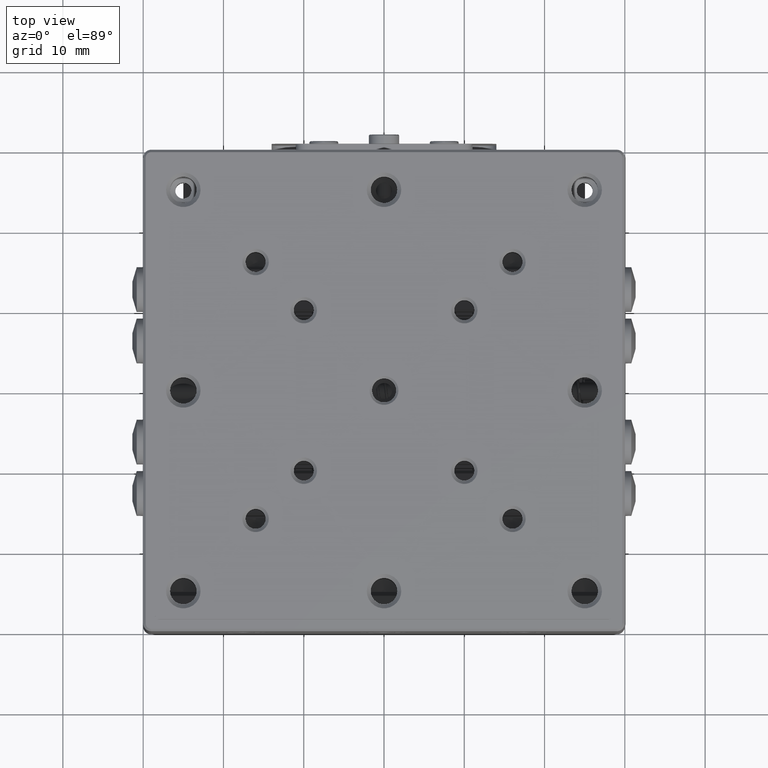
[diagram: clean part render]
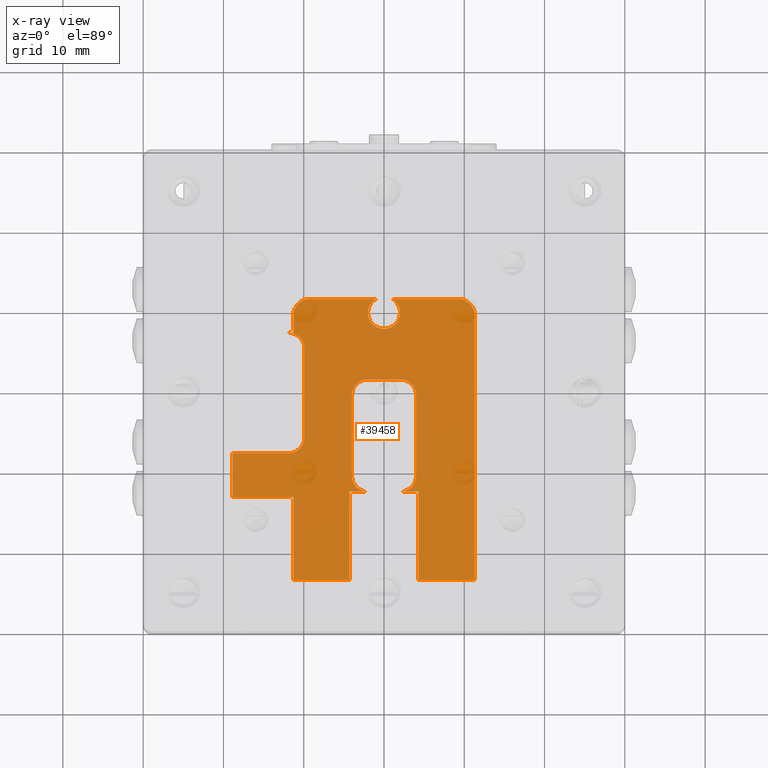
[diagram: x-ray — body ghosted, one internal face saturated and labeled with its STEP entity id]
A machine part, top view, then the same camera in x-ray: the body is ghosted and one INTERNAL B-rep face — a face not visible from any outside direction — is saturated and labeled: STEP entity #39458.
In plain terms, the highlighted planar face has unit normal (0, -0, 1).
Its self-contained STEP definition (entity closure, byte-faithful):
#500 = DIRECTION ( 'NONE',  ( 1.000000000000000000, 0.000000000000000000, -0.000000000000000000 ) ) ;
#527 = ORIENTED_EDGE ( 'NONE', *, *, #76208, .T. ) ;
#749 = VERTEX_POINT ( 'NONE', #58746 ) ;
#781 = CARTESIAN_POINT ( 'NONE',  ( 1.053565375285038019, 11.70000000000006146, -7.500000000000000888 ) ) ;
#857 = B_SPLINE_CURVE_WITH_KNOTS ( 'NONE', 3,
 ( #89902, #54098, #75636, #31029, #22253, #46249, #82547, #67811, #91336, #23673, #76132, #75160, #67328, #15390, #8991, #36955, #37899, #45263, #29598, #8011 ),
 .UNSPECIFIED., .F., .F.,
 ( 4, 1, 1, 1, 2, 2, 2, 1, 1, 1, 2, 2, 4 ),
 ( 0.000000000000000000, 0.1250000000000051903, 0.1875000000000077716, 0.2187500000000099087, 0.2343750000000103251, 0.2500000000000107137, 0.5000000000000005551, 0.6249999999999955591, 0.6874999999999934497, 0.7187499999999924505, 0.7343749999999926725, 0.7499999999999927836, 1.000000000000000000 ),
 .UNSPECIFIED. ) ;
#887 = CARTESIAN_POINT ( 'NONE',  ( -9.932177997966741501, 11.59797362498134099, -7.500000000000000000 ) ) ;
#1140 = ORIENTED_EDGE ( 'NONE', *, *, #53931, .T. ) ;
#1515 = VERTEX_POINT ( 'NONE', #5473 ) ;
#1814 = CARTESIAN_POINT ( 'NONE',  ( -11.10015324762576405, -7.333205600377914912, -7.500000000000002665 ) ) ;
#1837 = CARTESIAN_POINT ( 'NONE',  ( -11.13320560037766782, 10.49984675237453935, -7.500000000000001776 ) ) ;
#1904 = DIRECTION ( 'NONE',  ( 0.000000000000000000, 1.000000000000000000, -0.000000000000000000 ) ) ;
#2174 = ORIENTED_EDGE ( 'NONE', *, *, #11730, .T. ) ;
#2273 = VECTOR ( 'NONE', #11647, 1000.000000000000000 ) ;
#2305 = VERTEX_POINT ( 'NONE', #34175 ) ;
#2632 = CARTESIAN_POINT ( 'NONE',  ( -9.900000000000000355, 5.500000000000000000, -7.500000000000000888 ) ) ;
#2659 = CARTESIAN_POINT ( 'NONE',  ( -4.000000000000000000, -0.1729268595797736063, -7.500000000000001776 ) ) ;
#3517 = CARTESIAN_POINT ( 'NONE',  ( 10.90917479222266806, 10.91914732199016136, -7.500000000000001776 ) ) ;
#3625 = CARTESIAN_POINT ( 'NONE',  ( -2.750957539182414813, 1.553725627213396354, -7.500000000000000888 ) ) ;
#3676 = VECTOR ( 'NONE', #44287, 1000.000000000000000 ) ;
#3825 = CARTESIAN_POINT ( 'NONE',  ( 1.931251044790297078, 9.472790433418786904, -7.500000000000001776 ) ) ;
#4285 = DIRECTION ( 'NONE',  ( 1.000000000000000000, 0.000000000000000000, -0.000000000000000000 ) ) ;
#4316 = CARTESIAN_POINT ( 'NONE',  ( -1.511746682564725441, 8.683267052551551402, -7.500000000000000888 ) ) ;
#4700 = LINE ( 'NONE', #12077, #63885 ) ;
#4780 = CARTESIAN_POINT ( 'NONE',  ( 1.758125798563487274, 9.007357653029215427, -7.500000000000001776 ) ) ;
#5255 = CARTESIAN_POINT ( 'NONE',  ( 1.609174792222560324, 8.780852678010237611, -7.500000000000001776 ) ) ;
#5332 = DIRECTION ( 'NONE',  ( 1.000000000000000000, 0.000000000000000000, -0.000000000000000000 ) ) ;
#5473 = CARTESIAN_POINT ( 'NONE',  ( 2.000000000000000000, -12.30000000000000071, -7.500000000000000888 ) ) ;
#5781 = CARTESIAN_POINT ( 'NONE',  ( 3.760268104169530279, 0.6543209351523293638, -7.500000000000001776 ) ) ;
#5810 = CARTESIAN_POINT ( 'NONE',  ( -1.972834535069828865, 10.33132531235916041, -7.500000000000002665 ) ) ;
#5891 = DIRECTION ( 'NONE',  ( 1.000000000000000000, 0.000000000000000000, -0.000000000000000000 ) ) ;
#6257 = CARTESIAN_POINT ( 'NONE',  ( 4.000000000000000888, -0.04549697485550918685, -7.500000000000001776 ) ) ;
#6288 = CARTESIAN_POINT ( 'NONE',  ( -1.325224106915398936, 11.50729104251832524, -7.500000000000001776 ) ) ;
#6615 = VERTEX_POINT ( 'NONE', #94454 ) ;
#6662 = CARTESIAN_POINT ( 'NONE',  ( -3.846664217816563536, -11.06820000069774146, -7.500000000000002665 ) ) ;
#7191 = CARTESIAN_POINT ( 'NONE',  ( 4.000000000000000000, -0.2999999999999999889, -7.500000000000000888 ) ) ;
#7297 = CARTESIAN_POINT ( 'NONE',  ( -9.827209566581581512, 11.63125104479029481, -7.500000000000000000 ) ) ;
#7746 = CARTESIAN_POINT ( 'NONE',  ( -1.500137606733648710, 11.32343203370171025, -7.500000000000000000 ) ) ;
#7749 = CARTESIAN_POINT ( 'NONE',  ( -10.58326705255145050, -7.011746682564653277, -7.500000000000001776 ) ) ;
#7761 = CARTESIAN_POINT ( 'NONE',  ( 2.799846752374157255, -12.13320560037795204, -7.500000000000001776 ) ) ;
#7766 = CARTESIAN_POINT ( 'NONE',  ( -9.976856858129906414, 11.58206628694080109, -7.500000000000003553 ) ) ;
#7834 = VERTEX_POINT ( 'NONE', #19894 ) ;
#7877 = LINE ( 'NONE', #68146, #71623 ) ;
#8011 = CARTESIAN_POINT ( 'NONE',  ( -9.900000000000000355, 5.500000000000000000, -7.500000000000000888 ) ) ;
#8139 = CARTESIAN_POINT ( 'NONE',  ( 1.124649197056845740, 11.65594620390486469, -7.500000000000003553 ) ) ;
#8193 = B_SPLINE_CURVE_WITH_KNOTS ( 'NONE', 3,
 ( #51397, #44031, #22478, #81791, #75378, #82299, #29815, #74434, #73451, #30784, #81312, #80834, #14154, #73938, #7761, #43564, #37648, #60696, #14651, #21525 ),
 .UNSPECIFIED., .F., .F.,
 ( 4, 1, 1, 1, 2, 2, 2, 1, 1, 1, 2, 2, 4 ),
 ( 0.000000000000000000, 0.1250000000000008327, 0.1875000000000021927, 0.2187500000000028866, 0.2343750000000024702, 0.2500000000000020539, 0.5000000000000013323, 0.6250000000000008882, 0.6875000000000012212, 0.7187500000000013323, 0.7343750000000015543, 0.7500000000000017764, 1.000000000000000000 ),
 .UNSPECIFIED. ) ;
#8502 = LINE ( 'NONE', #16340, #3676 ) ;
#8517 = VERTEX_POINT ( 'NONE', #42539 ) ;
#8650 = CARTESIAN_POINT ( 'NONE',  ( 0.000000000000000000, -23.30000000000000071, -7.500000000000000888 ) ) ;
#8724 = CARTESIAN_POINT ( 'NONE',  ( -10.74113053165102905, -7.140566902677289995, -7.500000000000000000 ) ) ;
#8991 = CARTESIAN_POINT ( 'NONE',  ( -10.06679439962202061, 6.299846752374072878, -7.500000000000000000 ) ) ;
#9322 = DIRECTION ( 'NONE',  ( -0.000000000000000000, -1.000000000000000000, -0.000000000000000000 ) ) ;
#9428 = ORIENTED_EDGE ( 'NONE', *, *, #55498, .T. ) ;
#9433 = CARTESIAN_POINT ( 'NONE',  ( 9.554503025145196560, 11.70000000000000284, -7.500000000000001776 ) ) ;
#9480 = CARTESIAN_POINT ( 'NONE',  ( 11.30000000000000071, -23.30000000000000071, -7.500000000000000888 ) ) ;
#9529 = CARTESIAN_POINT ( 'NONE',  ( -2.768200000697572438, 1.546664217816668074, -7.500000000000002665 ) ) ;
#9915 = LINE ( 'NONE', #23172, #26085 ) ;
#9931 = CARTESIAN_POINT ( 'NONE',  ( 10.14695304999169601, 11.51247144108932829, -7.500000000000000888 ) ) ;
#10028 = CARTESIAN_POINT ( 'NONE',  ( -2.799846752374131054, 1.533205600378010791, -7.500000000000001776 ) ) ;
#10405 = B_SPLINE_CURVE_WITH_KNOTS ( 'NONE', 3,
 ( #29223, #59123, #28725, #36069, #43914, #82168, #50788, #29692, #72842, #15479, #52734, #13546, #65977, #89026, #95875, #6662, #14028, #44404, #59597, #74305 ),
 .UNSPECIFIED., .F., .F.,
 ( 4, 1, 1, 1, 2, 2, 2, 1, 1, 1, 2, 2, 4 ),
 ( 0.000000000000000000, 0.1249999999999977518, 0.1874999999999966138, 0.2187499999999958089, 0.2343749999999949207, 0.2499999999999940326, 0.4999999999999872324, 0.6249999999999839018, 0.6874999999999822364, 0.7187499999999813483, 0.7343749999999814593, 0.7499999999999816813, 1.000000000000000000 ),
 .UNSPECIFIED. ) ;
#10696 = ORIENTED_EDGE ( 'NONE', *, *, #73917, .T. ) ;
#10708 = CARTESIAN_POINT ( 'NONE',  ( 2.000000000000000000, 9.872926859579521874, -7.500000000000001776 ) ) ;
#10902 = CARTESIAN_POINT ( 'NONE',  ( 10.61673294744830365, 11.21174668256456464, -7.500000000000000000 ) ) ;
#10998 = CARTESIAN_POINT ( 'NONE',  ( -3.865917277347418413, 0.4201611111333397042, -7.500000000000000000 ) ) ;
#11287 = ORIENTED_EDGE ( 'NONE', *, *, #26418, .F. ) ;
#11647 = DIRECTION ( 'NONE',  ( -1.000000000000000000, -0.000000000000000000, 0.000000000000000000 ) ) ;
#11672 = CARTESIAN_POINT ( 'NONE',  ( -0.1269880111597319339, 7.999966323519930533, -7.500000000000002665 ) ) ;
#11730 = EDGE_CURVE ( 'NONE', #23526, #2305, #71532, .T. ) ;
#11827 = CARTESIAN_POINT ( 'NONE',  ( 2.000000000000000000, 10.00000000000000000, -7.500000000000000888 ) ) ;
#12000 = VERTEX_POINT ( 'NONE', #13668 ) ;
#12077 = CARTESIAN_POINT ( 'NONE',  ( 0.000000000000000000, -12.30000000000000071, -7.500000000000000888 ) ) ;
#12143 = CARTESIAN_POINT ( 'NONE',  ( -9.300000000000000711, 11.70000000000000107, -7.500000000000000888 ) ) ;
#12441 = VERTEX_POINT ( 'NONE', #88065 ) ;
#12672 = B_SPLINE_CURVE_WITH_KNOTS ( 'NONE', 3,
 ( #89138, #73436, #21022, #5810, #20524, #89613, #44019, #14636, #52365, #59229, #44516, #7746, #59703, #6288, #74419, #95506 ),
 .UNSPECIFIED., .F., .F.,
 ( 4, 1, 2, 2, 2, 1, 2, 2, 4 ),
 ( 0.000000000000000000, 0.1249999999999992784, 0.1875000000000001943, 0.2500000000000011102, 0.5000000000000025535, 0.6250000000000032196, 0.6875000000000024425, 0.7500000000000016653, 1.000000000000000000 ),
 .UNSPECIFIED. ) ;
#13546 = CARTESIAN_POINT ( 'NONE',  ( -3.640566902676908079, -11.45886946834975184, -7.500000000000001776 ) ) ;
#13627 = CARTESIAN_POINT ( 'NONE',  ( 3.853725627213396177, 0.4509575391823707480, -7.500000000000001776 ) ) ;
#13668 = CARTESIAN_POINT ( 'NONE',  ( 4.000000000000000000, -10.30000000000000071, -7.500000000000000888 ) ) ;
#14028 = CARTESIAN_POINT ( 'NONE',  ( -3.853725627213397065, -11.05095753918236667, -7.500000000000000888 ) ) ;
#14031 = ORIENTED_EDGE ( 'NONE', *, *, #72334, .T. ) ;
#14154 = CARTESIAN_POINT ( 'NONE',  ( 2.954320935151891536, -12.06026810416975614, -7.500000000000000888 ) ) ;
#14636 = CARTESIAN_POINT ( 'NONE',  ( -1.831426611794971571, 10.82190931247315113, -7.500000000000001776 ) ) ;
#14651 = CARTESIAN_POINT ( 'NONE',  ( 2.254503025144336092, -12.29999999999999538, -7.499999999999999112 ) ) ;
#15128 = CARTESIAN_POINT ( 'NONE',  ( -10.29082520777782150, -6.719147321989983546, -7.500000000000000000 ) ) ;
#15390 = CARTESIAN_POINT ( 'NONE',  ( -10.08752855891048839, 6.346953049991602036, -7.500000000000001776 ) ) ;
#15479 = CARTESIAN_POINT ( 'NONE',  ( -3.219147321990418309, -11.90917479222130737, -7.500000000000001776 ) ) ;
#15598 = CARTESIAN_POINT ( 'NONE',  ( -11.40010050181441237, -7.453192200708286919, -7.500000000000000888 ) ) ;
#15617 = CARTESIAN_POINT ( 'NONE',  ( -10.81174668256412019, 11.01673294744919573, -7.500000000000003553 ) ) ;
#15653 = VERTEX_POINT ( 'NONE', #12143 ) ;
#15922 = EDGE_CURVE ( 'NONE', #88504, #12000, #68422, .T. ) ;
#16340 = CARTESIAN_POINT ( 'NONE',  ( -11.30000000000000071, 0.000000000000000000, -7.500000000000000888 ) ) ;
#16363 = EDGE_CURVE ( 'NONE', #6615, #73544, #64004, .T. ) ;
#16564 = CARTESIAN_POINT ( 'NONE',  ( -10.03408272265259171, -6.220161111133355902, -7.500000000000001776 ) ) ;
#16615 = VERTEX_POINT ( 'NONE', #83041 ) ;
#16815 = VERTEX_POINT ( 'NONE', #2632 ) ;
#17144 = VERTEX_POINT ( 'NONE', #31915 ) ;
#17376 = CARTESIAN_POINT ( 'NONE',  ( -3.931251044790297744, 0.2272095665808810949, -7.500000000000001776 ) ) ;
#17624 = EDGE_CURVE ( 'NONE', #7834, #16615, #74975, .T. ) ;
#18005 = EDGE_CURVE ( 'NONE', #94831, #29196, #67586, .T. ) ;
#18267 = CARTESIAN_POINT ( 'NONE',  ( 11.30000000000000249, 9.827073140420763409, -7.500000000000002665 ) ) ;
#18272 = VECTOR ( 'NONE', #22576, 1000.000000000000000 ) ;
#18553 = CARTESIAN_POINT ( 'NONE',  ( 1.882066286940799804, 9.323143141870223971, -7.499999999999998224 ) ) ;
#18750 = CARTESIAN_POINT ( 'NONE',  ( 10.45886946834854569, 11.34056690267713918, -7.500000000000000888 ) ) ;
#18863 = EDGE_CURVE ( 'NONE', #749, #7834, #96456, .T. ) ;
#18999 = CARTESIAN_POINT ( 'NONE',  ( 0.000000000000000000, 7.500000000000000000, -7.500000000000000888 ) ) ;
#19894 = CARTESIAN_POINT ( 'NONE',  ( -4.299999999999999822, -23.30000000000000071, -7.500000000000000888 ) ) ;
#19914 = EDGE_CURVE ( 'NONE', #38891, #15653, #53927, .T. ) ;
#19988 = CARTESIAN_POINT ( 'NONE',  ( -1.219147321989834332, 8.390825207777620420, -7.500000000000001776 ) ) ;
#20252 = EDGE_CURVE ( 'NONE', #17144, #38891, #12672, .T. ) ;
#20492 = CARTESIAN_POINT ( 'NONE',  ( 2.632177997966496985, 1.597973624981343876, -7.500000000000000000 ) ) ;
#20524 = CARTESIAN_POINT ( 'NONE',  ( -1.957311412252587646, 10.41313231505990267, -7.500000000000000000 ) ) ;
#20980 = CARTESIAN_POINT ( 'NONE',  ( 3.812471441089329005, 0.5469530499919977862, -7.500000000000001776 ) ) ;
#21022 = CARTESIAN_POINT ( 'NONE',  ( -1.992238438591380056, 10.20815955257958052, -7.500000000000001776 ) ) ;
#21104 = CARTESIAN_POINT ( 'NONE',  ( 0.000000000000000000, -13.00000000000000178, -7.500000000000000888 ) ) ;
#21185 = ORIENTED_EDGE ( 'NONE', *, *, #34662, .T. ) ;
#21258 = B_SPLINE_CURVE_WITH_KNOTS ( 'NONE', 3,
 ( #24403, #74916, #74440, #7297, #887, #7766, #44536, #96991, #82305, #23901, #15617, #37185, #68992, #29820, #1837, #83732, #59724, #38137, #83236, #89639 ),
 .UNSPECIFIED., .F., .F.,
 ( 4, 1, 1, 1, 2, 2, 2, 1, 1, 1, 2, 2, 4 ),
 ( 0.000000000000000000, 0.1250000000000063283, 0.1875000000000101863, 0.2187500000000110467, 0.2343750000000103806, 0.2500000000000097145, 0.5000000000000041078, 0.6250000000000007772, 0.6874999999999994449, 0.7187499999999988898, 0.7343749999999978906, 0.7499999999999968914, 1.000000000000000000 ),
 .UNSPECIFIED. ) ;
#21476 = CARTESIAN_POINT ( 'NONE',  ( 2.314401673126242898, 1.682447075265607328, -7.500000000000000000 ) ) ;
#21525 = CARTESIAN_POINT ( 'NONE',  ( 2.000000000000000000, -12.30000000000000071, -7.500000000000000888 ) ) ;
#21923 = CARTESIAN_POINT ( 'NONE',  ( -1.953192200708286697, 9.500100501814566556, -7.500000000000002665 ) ) ;
#22253 = CARTESIAN_POINT ( 'NONE',  ( -11.26782200203331108, 7.397973624981347918, -7.500000000000005329 ) ) ;
#22467 = CARTESIAN_POINT ( 'NONE',  ( -10.01793371305919500, -6.176856858129603722, -7.500000000000000000 ) ) ;
#22478 = CARTESIAN_POINT ( 'NONE',  ( 3.982447075265608927, -10.61440167312521154, -7.500000000000000888 ) ) ;
#22576 = DIRECTION ( 'NONE',  ( -0.000000000000000000, -1.000000000000000000, -0.000000000000000000 ) ) ;
#22599 = LINE ( 'NONE', #67659, #51539 ) ;
#22964 = CARTESIAN_POINT ( 'NONE',  ( -10.00202637501865865, -6.132177997966250516, -7.500000000000002665 ) ) ;
#23048 = VERTEX_POINT ( 'NONE', #34294 ) ;
#23172 = CARTESIAN_POINT ( 'NONE',  ( -11.30000000000000071, 0.000000000000000000, -7.500000000000000888 ) ) ;
#23526 = VERTEX_POINT ( 'NONE', #28019 ) ;
#23673 = CARTESIAN_POINT ( 'NONE',  ( -10.68085267801032323, 7.109174792222928474, -7.500000000000001776 ) ) ;
#23809 = DIRECTION ( 'NONE',  ( 1.000000000000000000, 0.000000000000000000, 0.000000000000000000 ) ) ;
#23901 = CARTESIAN_POINT ( 'NONE',  ( -10.51914732199104030, 11.30917479222090094, -7.500000000000001776 ) ) ;
#24133 = CARTESIAN_POINT ( 'NONE',  ( 10.09984675237412688, 11.53320560037787246, -7.500000000000000000 ) ) ;
#24227 = CARTESIAN_POINT ( 'NONE',  ( -3.882066286940801803, 0.3768568581296565245, -7.500000000000000888 ) ) ;
#24397 = VERTEX_POINT ( 'NONE', #87625 ) ;
#24403 = CARTESIAN_POINT ( 'NONE',  ( -9.300000000000000711, 11.70000000000000107, -7.500000000000000888 ) ) ;
#25096 = CARTESIAN_POINT ( 'NONE',  ( 10.25432093515181897, 11.46026810416953623, -7.500000000000001776 ) ) ;
#25192 = CARTESIAN_POINT ( 'NONE',  ( -3.758125798563922260, 0.6926423469702396307, -7.499999999999999112 ) ) ;
#25590 = CARTESIAN_POINT ( 'NONE',  ( 9.300000000000000711, 11.70000000000000107, -7.500000000000000888 ) ) ;
#25881 = EDGE_CURVE ( 'NONE', #16615, #55766, #4700, .T. ) ;
#26085 = VECTOR ( 'NONE', #46678, 1000.000000000000000 ) ;
#26339 = FACE_OUTER_BOUND ( 'NONE', #26706, .T. ) ;
#26365 = CARTESIAN_POINT ( 'NONE',  ( -0.7065537897889984098, 8.128896134995676093, -7.499999999999997335 ) ) ;
#26418 = EDGE_CURVE ( 'NONE', #8517, #73544, #53410, .T. ) ;
#26459 = ORIENTED_EDGE ( 'NONE', *, *, #75853, .T. ) ;
#26706 = EDGE_LOOP ( 'NONE', ( #11287, #51062, #9428, #96420, #39189, #42910, #85609, #41780, #83891, #2174, #21185, #91758, #64110, #527, #10696, #87387, #65144, #26459, #35011, #94478, #88752, #30409, #92008, #30811, #14031, #71807, #33290, #77175, #1140, #65097 ) ) ;
#27781 = VERTEX_POINT ( 'NONE', #29448 ) ;
#28019 = CARTESIAN_POINT ( 'NONE',  ( -2.000000000000000000, 1.700000000000000178, -7.500000000000000888 ) ) ;
#28725 = CARTESIAN_POINT ( 'NONE',  ( -2.314401673125301873, -12.28244707526560653, -7.500000000000000000 ) ) ;
#28762 = CARTESIAN_POINT ( 'NONE',  ( 1.320881594162561123, 11.50237291628129377, -7.500000000000003553 ) ) ;
#29196 = VERTEX_POINT ( 'NONE', #38138 ) ;
#29223 = CARTESIAN_POINT ( 'NONE',  ( -2.000000000000000000, -12.30000000000000071, -7.500000000000000888 ) ) ;
#29326 = EDGE_CURVE ( 'NONE', #27781, #24397, #92529, .T. ) ;
#29448 = CARTESIAN_POINT ( 'NONE',  ( -11.29999999999999893, 7.500000000000000000, -7.500000000000000888 ) ) ;
#29598 = CARTESIAN_POINT ( 'NONE',  ( -9.899999999999998579, 5.754503025144331652, -7.500000000000000000 ) ) ;
#29692 = CARTESIAN_POINT ( 'NONE',  ( -2.720161111133421183, -12.16591727734737560, -7.500000000000002665 ) ) ;
#29815 = CARTESIAN_POINT ( 'NONE',  ( 3.871095708981806993, -11.00657440703168888, -7.500000000000004441 ) ) ;
#29820 = CARTESIAN_POINT ( 'NONE',  ( -11.11247144108899043, 10.54695304999238026, -7.500000000000000000 ) ) ;
#30345 = VECTOR ( 'NONE', #95329, 1000.000000000000000 ) ;
#30409 = ORIENTED_EDGE ( 'NONE', *, *, #20252, .T. ) ;
#30695 = CARTESIAN_POINT ( 'NONE',  ( 1.411218441835590198, 11.41784472537636574, -7.500000000000000888 ) ) ;
#30784 = CARTESIAN_POINT ( 'NONE',  ( 3.609174792222557215, -11.51914732198983238, -7.500000000000001776 ) ) ;
#30811 = ORIENTED_EDGE ( 'NONE', *, *, #39370, .T. ) ;
#31029 = CARTESIAN_POINT ( 'NONE',  ( -11.37279043341848528, 7.431251044790295524, -7.500000000000000888 ) ) ;
#31396 = DIRECTION ( 'NONE',  ( 0.000000000000000000, 1.000000000000000000, 0.000000000000000000 ) ) ;
#31710 = CARTESIAN_POINT ( 'NONE',  ( -11.90000000000000036, -7.500000000000000000, -7.500000000000000888 ) ) ;
#31915 = CARTESIAN_POINT ( 'NONE',  ( -2.000000000000000000, 10.00000000000000000, -7.500000000000000888 ) ) ;
#32235 = CARTESIAN_POINT ( 'NONE',  ( 0.000000000000000000, 0.000000000000000000, -7.500000000000000888 ) ) ;
#32936 = CARTESIAN_POINT ( 'NONE',  ( 11.16591727734749107, 10.42016111113322729, -7.500000000000000888 ) ) ;
#33290 = ORIENTED_EDGE ( 'NONE', *, *, #96150, .T. ) ;
#33507 = CARTESIAN_POINT ( 'NONE',  ( 1.053565375285038019, 11.70000000000006146, -7.500000000000000888 ) ) ;
#33723 = CARTESIAN_POINT ( 'NONE',  ( -0.6768176188611466637, 8.117918190306667725, -7.500000000000002665 ) ) ;
#34175 = CARTESIAN_POINT ( 'NONE',  ( 2.000000000000000000, 1.700000000000000178, -7.500000000000000888 ) ) ;
#34294 = CARTESIAN_POINT ( 'NONE',  ( 11.29999999999999893, -23.30000000000000071, -7.500000000000000888 ) ) ;
#34662 = EDGE_CURVE ( 'NONE', #2305, #88504, #88647, .T. ) ;
#35011 = ORIENTED_EDGE ( 'NONE', *, *, #60595, .T. ) ;
#35147 = CARTESIAN_POINT ( 'NONE',  ( 0.7682000006975852058, 8.153335782183360081, -7.500000000000002665 ) ) ;
#36069 = CARTESIAN_POINT ( 'NONE',  ( -2.527209566580459033, -12.23125104479030156, -7.500000000000004441 ) ) ;
#36144 = CARTESIAN_POINT ( 'NONE',  ( 3.219147321990161625, 1.309174792221889483, -7.500000000000000000 ) ) ;
#36538 = B_SPLINE_CURVE_WITH_KNOTS ( 'NONE', 3,
 ( #49398, #10708, #64576, #3825, #55801, #18553, #56267, #78318, #4780, #5255, #40591, #57228, #85711, #86662, #63649, #35147, #65071, #48899, #42048, #11672, #70478, #41060, #78804, #33723, #26365, #94482, #79775, #19988, #4316, #64106, #94000, #49871, #89072, #37568, #89549, #21923, #66520, #82212 ),
 .UNSPECIFIED., .F., .F.,
 ( 4, 1, 1, 1, 2, 2, 2, 1, 1, 1, 2, 2, 2, 1, 1, 1, 2, 2, 2, 1, 1, 1, 2, 2, 4 ),
 ( 0.000000000000000000, 0.06250000000000346945, 0.09375000000000564826, 0.1093750000000063283, 0.1171875000000062311, 0.1250000000000061340, 0.2500000000000055511, 0.3125000000000054956, 0.3437500000000057732, 0.3593750000000058842, 0.3671875000000059397, 0.3750000000000059952, 0.5000000000000075495, 0.5625000000000083267, 0.5937500000000086597, 0.6093750000000087708, 0.6171875000000088818, 0.6250000000000088818, 0.7500000000000101030, 0.8125000000000108802, 0.8437500000000113243, 0.8593750000000115463, 0.8671875000000113243, 0.8750000000000109912, 1.000000000000000000 ),
 .UNSPECIFIED. ) ;
#36598 = CARTESIAN_POINT ( 'NONE',  ( 1.560964125554330284, 11.26229979463293596, -7.500000000000001776 ) ) ;
#36735 = CARTESIAN_POINT ( 'NONE',  ( -4.000000000000000000, 0.000000000000000000, -7.500000000000000888 ) ) ;
#36955 = CARTESIAN_POINT ( 'NONE',  ( -10.05333578218335155, 6.268200000697546237, -7.500000000000002665 ) ) ;
#37185 = CARTESIAN_POINT ( 'NONE',  ( -10.94056690267636078, 10.85886946835010036, -7.500000000000001776 ) ) ;
#37551 = VERTEX_POINT ( 'NONE', #62576 ) ;
#37568 = CARTESIAN_POINT ( 'NONE',  ( -1.846664217816634368, 9.231799999302392479, -7.499999999999999112 ) ) ;
#37638 = CARTESIAN_POINT ( 'NONE',  ( -10.94567906484786590, -7.260268104169647074, -7.500000000000001776 ) ) ;
#37648 = CARTESIAN_POINT ( 'NONE',  ( 2.750957539182381062, -12.15372562721339911, -7.500000000000000888 ) ) ;
#37802 = EDGE_CURVE ( 'NONE', #29196, #23526, #84716, .T. ) ;
#37899 = CARTESIAN_POINT ( 'NONE',  ( -10.04627437278660729, 6.250957539182382838, -7.500000000000003553 ) ) ;
#38137 = CARTESIAN_POINT ( 'NONE',  ( -11.25319220070828763, 10.19989949818686981, -7.500000000000000000 ) ) ;
#38138 = CARTESIAN_POINT ( 'NONE',  ( -4.000000000000000000, -0.2999999999999998224, -7.500000000000000888 ) ) ;
#38539 = LINE ( 'NONE', #8650, #45358 ) ;
#38891 = VERTEX_POINT ( 'NONE', #93932 ) ;
#39189 = ORIENTED_EDGE ( 'NONE', *, *, #17624, .T. ) ;
#39370 = EDGE_CURVE ( 'NONE', #15653, #74281, #21258, .T. ) ;
#39418 = CARTESIAN_POINT ( 'NONE',  ( -3.982447075265607150, 0.01440167312586446667, -7.499999999999998224 ) ) ;
#39458 = ADVANCED_FACE ( 'NONE', ( #26339 ), #93974, .T. ) ;
#39997 = VECTOR ( 'NONE', #40363, 1000.000000000000000 ) ;
#40363 = DIRECTION ( 'NONE',  ( -0.000000000000000000, 1.000000000000000000, 0.000000000000000000 ) ) ;
#40591 = CARTESIAN_POINT ( 'NONE',  ( 1.316732947448363555, 8.488253317435244583, -7.500000000000003553 ) ) ;
#41060 = CARTESIAN_POINT ( 'NONE',  ( -0.5270978344264812820, 8.068704754829614245, -7.500000000000001776 ) ) ;
#41587 = DIRECTION ( 'NONE',  ( -1.000000000000000000, -0.000000000000000000, 0.000000000000000000 ) ) ;
#41647 = CARTESIAN_POINT ( 'NONE',  ( 0.000000000000000000, 1.699999999999999956, -7.500000000000000888 ) ) ;
#41710 = LINE ( 'NONE', #21104, #54006 ) ;
#41780 = ORIENTED_EDGE ( 'NONE', *, *, #18005, .T. ) ;
#42048 = CARTESIAN_POINT ( 'NONE',  ( 0.2539760223194633681, 8.000067352960144262, -7.500000000000001776 ) ) ;
#42222 = CARTESIAN_POINT ( 'NONE',  ( -18.89999999999999858, -7.500000000000000000, -7.500000000000000888 ) ) ;
#42539 = CARTESIAN_POINT ( 'NONE',  ( -18.89999999999999858, -13.00000000000000178, -7.500000000000000888 ) ) ;
#42910 = ORIENTED_EDGE ( 'NONE', *, *, #25881, .T. ) ;
#43028 = CARTESIAN_POINT ( 'NONE',  ( 2.992642346970271205, 1.458125798563723485, -7.500000000000001776 ) ) ;
#43195 = EDGE_CURVE ( 'NONE', #93438, #23048, #38539, .T. ) ;
#43518 = CARTESIAN_POINT ( 'NONE',  ( 3.953192200708286475, 0.1998994981857395714, -7.500000000000000888 ) ) ;
#43564 = CARTESIAN_POINT ( 'NONE',  ( 2.768200000697586205, -12.14666421781663708, -7.500000000000001776 ) ) ;
#43914 = CARTESIAN_POINT ( 'NONE',  ( -2.632177997966085758, -12.19797362498134952, -7.500000000000000888 ) ) ;
#43983 = DIRECTION ( 'NONE',  ( 1.000000000000000000, 0.000000000000000000, 0.000000000000000000 ) ) ;
#43988 = CARTESIAN_POINT ( 'NONE',  ( 4.000000000000000000, -0.2999999999999999889, -7.500000000000000888 ) ) ;
#44019 = CARTESIAN_POINT ( 'NONE',  ( -1.895243702810771369, 10.66186182829439844, -7.500000000000001776 ) ) ;
#44031 = CARTESIAN_POINT ( 'NONE',  ( 4.000000000000000000, -10.42707314041985711, -7.500000000000001776 ) ) ;
#44074 = DIRECTION ( 'NONE',  ( 0.000000000000000000, 1.000000000000000000, 0.000000000000000000 ) ) ;
#44287 = DIRECTION ( 'NONE',  ( -0.000000000000000000, -1.000000000000000000, -0.000000000000000000 ) ) ;
#44404 = CARTESIAN_POINT ( 'NONE',  ( -3.953192200708286919, -10.79989949818579653, -7.500000000000000888 ) ) ;
#44443 = CARTESIAN_POINT ( 'NONE',  ( 1.844804458371049227, 10.78101886571788448, -7.500000000000004441 ) ) ;
#44516 = CARTESIAN_POINT ( 'NONE',  ( -1.555711751887177030, 11.25769512890292745, -7.500000000000001776 ) ) ;
#44536 = CARTESIAN_POINT ( 'NONE',  ( -10.00657440703190737, 11.57109570898180451, -7.500000000000003553 ) ) ;
#45263 = CARTESIAN_POINT ( 'NONE',  ( -9.946807799291709884, 5.999899498185579994, -7.499999999999999112 ) ) ;
#45358 = VECTOR ( 'NONE', #23809, 1000.000000000000000 ) ;
#46249 = CARTESIAN_POINT ( 'NONE',  ( -11.22314314187012663, 7.382066286940804467, -7.500000000000004441 ) ) ;
#46306 = CARTESIAN_POINT ( 'NONE',  ( -2.254503025143792971, 1.700000000000000400, -7.500000000000003553 ) ) ;
#46561 = LINE ( 'NONE', #60783, #18272 ) ;
#46678 = DIRECTION ( 'NONE',  ( -0.000000000000000000, -1.000000000000000000, -0.000000000000000000 ) ) ;
#46851 = DIRECTION ( 'NONE',  ( -0.000000000000000000, -1.000000000000000000, -0.000000000000000000 ) ) ;
#46989 = LINE ( 'NONE', #85246, #85554 ) ;
#47666 = CARTESIAN_POINT ( 'NONE',  ( 11.05812579856275946, 10.69264234697201843, -7.500000000000000000 ) ) ;
#48149 = CARTESIAN_POINT ( 'NONE',  ( 11.18206628694080251, 10.37685685812990322, -7.500000000000002665 ) ) ;
#48899 = CARTESIAN_POINT ( 'NONE',  ( 0.5000699669035323369, 8.046875337217242574, -7.500000000000005329 ) ) ;
#49398 = CARTESIAN_POINT ( 'NONE',  ( 2.000000000000000000, 10.00000000000000000, -7.500000000000000888 ) ) ;
#49871 = CARTESIAN_POINT ( 'NONE',  ( -1.812471441089454238, 9.153046950008192795, -7.500000000000002665 ) ) ;
#50002 = B_SPLINE_CURVE_WITH_KNOTS ( 'NONE', 3,
 ( #781, #8139, #74816, #28762, #52773, #30695, #36598, #90037, #58664, #44443, #96423, #51310, #74342, #60604, #90508, #82204 ),
 .UNSPECIFIED., .F., .F.,
 ( 4, 1, 2, 2, 2, 1, 2, 2, 4 ),
 ( 0.000000000000000000, 0.1250000000000021372, 0.1875000000000030809, 0.2500000000000040523, 0.5000000000000021094, 0.6250000000000012212, 0.6875000000000018874, 0.7500000000000024425, 1.000000000000000000 ),
 .UNSPECIFIED. ) ;
#50167 = EDGE_CURVE ( 'NONE', #51877, #17144, #36538, .T. ) ;
#50370 = CARTESIAN_POINT ( 'NONE',  ( 2.676856858129757377, 1.582066286940801536, -7.500000000000001776 ) ) ;
#50788 = CARTESIAN_POINT ( 'NONE',  ( -2.706574407031697049, -12.17109570898181126, -7.500000000000001776 ) ) ;
#51013 = VECTOR ( 'NONE', #5332, 1000.000000000000000 ) ;
#51062 = ORIENTED_EDGE ( 'NONE', *, *, #57386, .T. ) ;
#51286 = VERTEX_POINT ( 'NONE', #91374 ) ;
#51310 = CARTESIAN_POINT ( 'NONE',  ( 1.915163748955646117, 10.57795588209742377, -7.500000000000001776 ) ) ;
#51353 = CARTESIAN_POINT ( 'NONE',  ( 3.833205600377872280, 0.4998467523743097551, -7.500000000000000888 ) ) ;
#51397 = CARTESIAN_POINT ( 'NONE',  ( 4.000000000000000000, -10.30000000000000071, -7.500000000000000888 ) ) ;
#51539 = VECTOR ( 'NONE', #500, 1000.000000000000000 ) ;
#51877 = VERTEX_POINT ( 'NONE', #11827 ) ;
#52365 = CARTESIAN_POINT ( 'NONE',  ( -1.705454772343828918, 11.04831841814273652, -7.500000000000001776 ) ) ;
#52369 = CARTESIAN_POINT ( 'NONE',  ( -10.14187420143588270, -6.492642346969988765, -7.500000000000000888 ) ) ;
#52734 = CARTESIAN_POINT ( 'NONE',  ( -3.511746682564434341, -11.61673294744899287, -7.500000000000000888 ) ) ;
#52773 = CARTESIAN_POINT ( 'NONE',  ( 1.382240234100222454, 11.44608374913578253, -7.500000000000000888 ) ) ;
#53410 = LINE ( 'NONE', #53899, #90542 ) ;
#53899 = CARTESIAN_POINT ( 'NONE',  ( -18.89999999999999858, -23.30000000000000071, -7.500000000000000888 ) ) ;
#53927 = LINE ( 'NONE', #70074, #74061 ) ;
#53931 = EDGE_CURVE ( 'NONE', #64678, #6615, #54764, .T. ) ;
#54006 = VECTOR ( 'NONE', #5891, 1000.000000000000000 ) ;
#54058 = CARTESIAN_POINT ( 'NONE',  ( 11.28244707526560653, 10.01440167312680529, -7.500000000000000888 ) ) ;
#54098 = CARTESIAN_POINT ( 'NONE',  ( -11.77292685957929130, 7.499999999999999112, -7.500000000000001776 ) ) ;
#54764 = B_SPLINE_CURVE_WITH_KNOTS ( 'NONE', 3,
 ( #60200, #68974, #90116, #75854, #22964, #22467, #90587, #16564, #52369, #15128, #7749, #8724, #37638, #76336, #1814, #91544, #82757, #15598, #75369, #31710 ),
 .UNSPECIFIED., .F., .F.,
 ( 4, 1, 1, 1, 2, 2, 2, 1, 1, 1, 2, 2, 4 ),
 ( 0.000000000000000000, 0.1249999999999979461, 0.1874999999999963363, 0.2187499999999953093, 0.2343749999999954481, 0.2499999999999956146, 0.4999999999999933387, 0.6249999999999918954, 0.6874999999999914513, 0.7187499999999905631, 0.7343749999999898970, 0.7499999999999893419, 1.000000000000000000 ),
 .UNSPECIFIED. ) ;
#55011 = CARTESIAN_POINT ( 'NONE',  ( 11.17109570898180415, 10.40657440703190240, -7.500000000000000000 ) ) ;
#55103 = CARTESIAN_POINT ( 'NONE',  ( -3.609174792222662465, 0.9191473219895542890, -7.499999999999999112 ) ) ;
#55498 = EDGE_CURVE ( 'NONE', #51286, #749, #8502, .T. ) ;
#55606 = CARTESIAN_POINT ( 'NONE',  ( -2.000000000000000000, 1.700000000000000178, -7.500000000000000888 ) ) ;
#55766 = VERTEX_POINT ( 'NONE', #73475 ) ;
#55778 = DIRECTION ( 'NONE',  ( 0.000000000000000000, -0.000000000000000000, 1.000000000000000000 ) ) ;
#55801 = CARTESIAN_POINT ( 'NONE',  ( 1.897973624981344143, 9.367822002033472373, -7.500000000000000888 ) ) ;
#56267 = CARTESIAN_POINT ( 'NONE',  ( 1.871095708981805661, 9.293425592968162618, -7.500000000000000888 ) ) ;
#57228 = CARTESIAN_POINT ( 'NONE',  ( 1.158869468348644460, 8.359433097322529704, -7.500000000000000000 ) ) ;
#57386 = EDGE_CURVE ( 'NONE', #8517, #51286, #41710, .T. ) ;
#58208 = CARTESIAN_POINT ( 'NONE',  ( 2.527209566581166467, 1.631251044790297033, -7.500000000000000888 ) ) ;
#58664 = CARTESIAN_POINT ( 'NONE',  ( 1.789474704049774045, 10.89740056267719126, -7.500000000000000888 ) ) ;
#58746 = CARTESIAN_POINT ( 'NONE',  ( -11.29999999999999893, -23.30000000000000071, -7.500000000000000888 ) ) ;
#59123 = CARTESIAN_POINT ( 'NONE',  ( -2.127073140419904806, -12.29999999999999893, -7.500000000000000888 ) ) ;
#59229 = CARTESIAN_POINT ( 'NONE',  ( -1.635677086616683429, 11.15665657243198439, -7.500000000000000888 ) ) ;
#59597 = CARTESIAN_POINT ( 'NONE',  ( -4.000000000000000888, -10.55450302514454464, -7.500000000000001776 ) ) ;
#59703 = CARTESIAN_POINT ( 'NONE',  ( -1.470153446495316985, 11.35659691340506861, -7.500000000000000888 ) ) ;
#59724 = CARTESIAN_POINT ( 'NONE',  ( -11.15372562721339733, 10.45095753918229953, -7.500000000000001776 ) ) ;
#60200 = CARTESIAN_POINT ( 'NONE',  ( -9.900000000000000355, -5.500000000000000000, -7.500000000000000888 ) ) ;
#60595 = EDGE_CURVE ( 'NONE', #72156, #93477, #46989, .T. ) ;
#60604 = CARTESIAN_POINT ( 'NONE',  ( 1.979302502910345707, 10.33242566444002009, -7.500000000000000000 ) ) ;
#60696 = CARTESIAN_POINT ( 'NONE',  ( 2.499899498185584434, -12.25319220070828408, -7.500000000000000000 ) ) ;
#60783 = CARTESIAN_POINT ( 'NONE',  ( -9.900000000000000355, 0.000000000000000000, -7.500000000000000888 ) ) ;
#60996 = CARTESIAN_POINT ( 'NONE',  ( -2.499899498185039981, 1.653192200708286652, -7.500000000000000000 ) ) ;
#62362 = CARTESIAN_POINT ( 'NONE',  ( 9.799899498186443125, 11.65319220070828621, -7.500000000000002665 ) ) ;
#62576 = CARTESIAN_POINT ( 'NONE',  ( 4.299999999999999822, -12.30000000000000071, -7.500000000000000888 ) ) ;
#62842 = CARTESIAN_POINT ( 'NONE',  ( 11.23125104479029623, 10.22720956658158720, -7.500000000000000888 ) ) ;
#63649 = CARTESIAN_POINT ( 'NONE',  ( 0.7998467523741553675, 8.166794399622038014, -7.500000000000000888 ) ) ;
#63885 = VECTOR ( 'NONE', #64493, 1000.000000000000000 ) ;
#64004 = LINE ( 'NONE', #87042, #30345 ) ;
#64106 = CARTESIAN_POINT ( 'NONE',  ( -1.640566902677419225, 8.841130531651202773, -7.500000000000000888 ) ) ;
#64110 = ORIENTED_EDGE ( 'NONE', *, *, #66081, .T. ) ;
#64165 = AXIS2_PLACEMENT_3D ( 'NONE', #32235, #55778, #4285 ) ;
#64493 = DIRECTION ( 'NONE',  ( 1.000000000000000000, 0.000000000000000000, -0.000000000000000000 ) ) ;
#64576 = CARTESIAN_POINT ( 'NONE',  ( 1.982447075265606706, 9.685598326873686048, -7.500000000000000888 ) ) ;
#64678 = VERTEX_POINT ( 'NONE', #89255 ) ;
#65071 = CARTESIAN_POINT ( 'NONE',  ( 0.7509468848875092695, 8.146270151666259451, -7.500000000000001776 ) ) ;
#65097 = ORIENTED_EDGE ( 'NONE', *, *, #16363, .T. ) ;
#65144 = ORIENTED_EDGE ( 'NONE', *, *, #79343, .T. ) ;
#65977 = CARTESIAN_POINT ( 'NONE',  ( -3.760268104169362857, -11.25432093515271426, -7.499999999999999112 ) ) ;
#66081 = EDGE_CURVE ( 'NONE', #12000, #1515, #8193, .T. ) ;
#66520 = CARTESIAN_POINT ( 'NONE',  ( -2.000000000000000000, 9.745496974855814898, -7.500000000000001776 ) ) ;
#66599 = CARTESIAN_POINT ( 'NONE',  ( -11.30000000000000071, 9.700000000000001066, -7.500000000000000888 ) ) ;
#67328 = CARTESIAN_POINT ( 'NONE',  ( -10.13973189583015255, 6.454320935151651284, -7.500000000000002665 ) ) ;
#67586 = LINE ( 'NONE', #36735, #88220 ) ;
#67614 = CARTESIAN_POINT ( 'NONE',  ( -4.299999999999999822, 0.000000000000000000, -7.500000000000000888 ) ) ;
#67659 = CARTESIAN_POINT ( 'NONE',  ( 0.000000000000000000, -12.30000000000000071, -7.500000000000000888 ) ) ;
#67811 = CARTESIAN_POINT ( 'NONE',  ( -11.17983888886674926, 7.365917277347478809, -7.500000000000001776 ) ) ;
#67910 = EDGE_CURVE ( 'NONE', #93477, #51877, #50002, .T. ) ;
#68146 = CARTESIAN_POINT ( 'NONE',  ( 4.299999999999999822, 0.000000000000000000, -7.500000000000000888 ) ) ;
#68422 = LINE ( 'NONE', #91463, #88287 ) ;
#68974 = CARTESIAN_POINT ( 'NONE',  ( -9.900000000000003908, -5.627073140420117525, -7.500000000000001776 ) ) ;
#68992 = CARTESIAN_POINT ( 'NONE',  ( -11.06026810416895323, 10.65432093515298106, -7.500000000000001776 ) ) ;
#69210 = CARTESIAN_POINT ( 'NONE',  ( 10.05095753918232937, 11.55372562721339946, -7.500000000000001776 ) ) ;
#69288 = CARTESIAN_POINT ( 'NONE',  ( 4.299999999999999822, -23.30000000000000071, -7.500000000000000888 ) ) ;
#70074 = CARTESIAN_POINT ( 'NONE',  ( 0.000000000000000000, 11.70000000000000107, -7.500000000000000888 ) ) ;
#70478 = CARTESIAN_POINT ( 'NONE',  ( -0.3142526969199983533, 8.017493990894266176, -7.500000000000000888 ) ) ;
#70673 = CARTESIAN_POINT ( 'NONE',  ( 11.30000000000000071, 9.700000000000001066, -7.500000000000000888 ) ) ;
#71047 = VECTOR ( 'NONE', #43983, 1000.000000000000000 ) ;
#71532 = LINE ( 'NONE', #41647, #51013 ) ;
#71623 = VECTOR ( 'NONE', #9322, 1000.000000000000000 ) ;
#71807 = ORIENTED_EDGE ( 'NONE', *, *, #29326, .T. ) ;
#72156 = VERTEX_POINT ( 'NONE', #75957 ) ;
#72334 = EDGE_CURVE ( 'NONE', #74281, #27781, #9915, .T. ) ;
#72705 = EDGE_CURVE ( 'NONE', #16815, #64678, #46561, .T. ) ;
#72842 = CARTESIAN_POINT ( 'NONE',  ( -2.992642346968950484, -12.05812579856471345, -7.500000000000001776 ) ) ;
#72925 = CARTESIAN_POINT ( 'NONE',  ( 3.511746682564562683, 1.016732947448697910, -7.500000000000001776 ) ) ;
#73421 = CARTESIAN_POINT ( 'NONE',  ( -4.000000000000000000, -10.30000000000000071, -7.500000000000000888 ) ) ;
#73436 = CARTESIAN_POINT ( 'NONE',  ( -2.000000000000000888, 10.08362802561460825, -7.500000000000001776 ) ) ;
#73451 = CARTESIAN_POINT ( 'NONE',  ( 3.758125798564345477, -11.29264234696998948, -7.500000000000002665 ) ) ;
#73475 = CARTESIAN_POINT ( 'NONE',  ( -2.000000000000000000, -12.30000000000000071, -7.500000000000000888 ) ) ;
#73544 = VERTEX_POINT ( 'NONE', #42222 ) ;
#73917 = EDGE_CURVE ( 'NONE', #37551, #93438, #7877, .T. ) ;
#73938 = CARTESIAN_POINT ( 'NONE',  ( 2.846953049991743256, -12.11247144108946117, -7.500000000000000888 ) ) ;
#74061 = VECTOR ( 'NONE', #76923, 1000.000000000000000 ) ;
#74281 = VERTEX_POINT ( 'NONE', #66599 ) ;
#74305 = CARTESIAN_POINT ( 'NONE',  ( -4.000000000000000000, -10.30000000000000071, -7.500000000000000888 ) ) ;
#74342 = CARTESIAN_POINT ( 'NONE',  ( 1.927558760186210973, 10.53499866143017272, -7.500000000000001776 ) ) ;
#74419 = CARTESIAN_POINT ( 'NONE',  ( -1.196023372483954850, 11.61171246277575086, -7.500000000000002665 ) ) ;
#74434 = CARTESIAN_POINT ( 'NONE',  ( 3.865917277347393544, -11.02016111113336017, -7.500000000000002665 ) ) ;
#74440 = CARTESIAN_POINT ( 'NONE',  ( -9.614401673126808490, 11.68244707526560866, -7.500000000000000888 ) ) ;
#74816 = CARTESIAN_POINT ( 'NONE',  ( 1.226412338797521873, 11.58374782423696558, -7.500000000000000888 ) ) ;
#74857 = CARTESIAN_POINT ( 'NONE',  ( 2.000000000000000000, 1.700000000000000178, -7.500000000000000888 ) ) ;
#74916 = CARTESIAN_POINT ( 'NONE',  ( -9.427073140420763053, 11.70000000000000107, -7.500000000000002665 ) ) ;
#74975 = LINE ( 'NONE', #67614, #82140 ) ;
#75160 = CARTESIAN_POINT ( 'NONE',  ( -10.25943309732245012, 6.658869468348326492, -7.500000000000002665 ) ) ;
#75369 = CARTESIAN_POINT ( 'NONE',  ( -11.64549697485565893, -7.499999999999999112, -7.500000000000000888 ) ) ;
#75378 = CARTESIAN_POINT ( 'NONE',  ( 3.897973624981343921, -10.93217799796604872, -7.500000000000002665 ) ) ;
#75636 = CARTESIAN_POINT ( 'NONE',  ( -11.58559832687329738, 7.482447075265607594, -7.500000000000000000 ) ) ;
#75853 = EDGE_CURVE ( 'NONE', #12441, #72156, #93567, .T. ) ;
#75854 = CARTESIAN_POINT ( 'NONE',  ( -9.968748955209701279, -6.027209566580738809, -7.500000000000000888 ) ) ;
#75957 = CARTESIAN_POINT ( 'NONE',  ( 9.300000000000000711, 11.70000000000000107, -7.500000000000000888 ) ) ;
#76132 = CARTESIAN_POINT ( 'NONE',  ( -10.38825331743520053, 6.816732947448182145, -7.500000000000001776 ) ) ;
#76191 = CARTESIAN_POINT ( 'NONE',  ( -3.897973624981344365, 0.3321779979663321836, -7.499999999999999112 ) ) ;
#76208 = EDGE_CURVE ( 'NONE', #1515, #37551, #22599, .T. ) ;
#76336 = CARTESIAN_POINT ( 'NONE',  ( -11.05304695000811499, -7.312471441089398283, -7.500000000000001776 ) ) ;
#76663 = CARTESIAN_POINT ( 'NONE',  ( -3.316732947448311819, 1.211746682564865729, -7.500000000000005329 ) ) ;
#76923 = DIRECTION ( 'NONE',  ( -1.000000000000000000, -0.000000000000000000, 0.000000000000000000 ) ) ;
#77046 = CARTESIAN_POINT ( 'NONE',  ( 11.19797362498134596, 10.33217799796674008, -7.500000000000000888 ) ) ;
#77061 = EDGE_CURVE ( 'NONE', #55766, #94831, #10405, .T. ) ;
#77148 = CARTESIAN_POINT ( 'NONE',  ( -3.158869468348553866, 1.340566902677664096, -7.500000000000000000 ) ) ;
#77175 = ORIENTED_EDGE ( 'NONE', *, *, #72705, .T. ) ;
#78042 = CARTESIAN_POINT ( 'NONE',  ( 10.06820000069757093, 11.54666421781659658, -7.500000000000002665 ) ) ;
#78318 = CARTESIAN_POINT ( 'NONE',  ( 1.865917277347446390, 9.279838888866692059, -7.500000000000000888 ) ) ;
#78804 = CARTESIAN_POINT ( 'NONE',  ( -0.6321128208762661904, 8.102000591463601964, -7.500000000000004441 ) ) ;
#79343 = EDGE_CURVE ( 'NONE', #23048, #12441, #84966, .T. ) ;
#79775 = CARTESIAN_POINT ( 'NONE',  ( -0.9926423469706606717, 8.241874201436502290, -7.500000000000005329 ) ) ;
#80281 = CARTESIAN_POINT ( 'NONE',  ( 2.706574407031826279, 1.571095708981805616, -7.500000000000000888 ) ) ;
#80778 = CARTESIAN_POINT ( 'NONE',  ( 0.000000000000000000, -23.30000000000000071, -7.500000000000000888 ) ) ;
#80784 = CARTESIAN_POINT ( 'NONE',  ( 3.846664217816595954, 0.4682000006976663187, -7.500000000000002665 ) ) ;
#80834 = CARTESIAN_POINT ( 'NONE',  ( 3.158869468348647125, -11.94056690267742482, -7.499999999999999112 ) ) ;
#81312 = CARTESIAN_POINT ( 'NONE',  ( 3.316732947448365110, -11.81174668256473126, -7.500000000000003553 ) ) ;
#81791 = CARTESIAN_POINT ( 'NONE',  ( 3.931251044790298188, -10.82720956658039313, -7.500000000000000888 ) ) ;
#82140 = VECTOR ( 'NONE', #31396, 1000.000000000000000 ) ;
#82168 = CARTESIAN_POINT ( 'NONE',  ( -2.676856858129507799, -12.18206628694080429, -7.500000000000002665 ) ) ;
#82204 = CARTESIAN_POINT ( 'NONE',  ( 2.000000000000000000, 10.00000000000000000, -7.500000000000000888 ) ) ;
#82212 = CARTESIAN_POINT ( 'NONE',  ( -2.000000000000000000, 10.00000000000000000, -7.500000000000000888 ) ) ;
#82299 = CARTESIAN_POINT ( 'NONE',  ( 3.882066286940802247, -10.97685685812948719, -7.500000000000002665 ) ) ;
#82305 = CARTESIAN_POINT ( 'NONE',  ( -10.29264234697054547, 11.45812579856334246, -7.500000000000000888 ) ) ;
#82547 = CARTESIAN_POINT ( 'NONE',  ( -11.19342559296811146, 7.371095708981806105, -7.500000000000000888 ) ) ;
#82757 = CARTESIAN_POINT ( 'NONE',  ( -11.14904246081762551, -7.353725627213398397, -7.500000000000001776 ) ) ;
#83041 = CARTESIAN_POINT ( 'NONE',  ( -4.299999999999999822, -12.30000000000000071, -7.500000000000000888 ) ) ;
#83236 = CARTESIAN_POINT ( 'NONE',  ( -11.30000000000000426, 9.954503025145625017, -7.500000000000002665 ) ) ;
#83732 = CARTESIAN_POINT ( 'NONE',  ( -11.14666421781648609, 10.46820000069778800, -7.500000000000001776 ) ) ;
#83891 = ORIENTED_EDGE ( 'NONE', *, *, #37802, .T. ) ;
#84716 = B_SPLINE_CURVE_WITH_KNOTS ( 'NONE', 3,
 ( #92364, #2659, #39418, #17376, #76191, #24227, #85017, #10998, #25192, #55103, #76663, #77148, #91881, #91393, #10028, #9529, #3625, #60996, #46306, #55606 ),
 .UNSPECIFIED., .F., .F.,
 ( 4, 1, 1, 1, 2, 2, 2, 1, 1, 1, 2, 2, 4 ),
 ( 0.000000000000000000, 0.1249999999999991118, 0.1874999999999987232, 0.2187499999999985567, 0.2343749999999985290, 0.2499999999999985012, 0.4999999999999988898, 0.6249999999999991118, 0.6874999999999991118, 0.7187499999999991118, 0.7343749999999993339, 0.7499999999999995559, 1.000000000000000000 ),
 .UNSPECIFIED. ) ;
#84966 = LINE ( 'NONE', #9480, #39997 ) ;
#85017 = CARTESIAN_POINT ( 'NONE',  ( -3.871095708981806549, 0.4065744070317746095, -7.500000000000000888 ) ) ;
#85246 = CARTESIAN_POINT ( 'NONE',  ( 0.000000000000000000, 11.70000000000000107, -7.500000000000000888 ) ) ;
#85554 = VECTOR ( 'NONE', #41587, 1000.000000000000000 ) ;
#85609 = ORIENTED_EDGE ( 'NONE', *, *, #77061, .T. ) ;
#85711 = CARTESIAN_POINT ( 'NONE',  ( 0.9543209351518897599, 8.239731895830214370, -7.500000000000001776 ) ) ;
#86662 = CARTESIAN_POINT ( 'NONE',  ( 0.8469530499917414801, 8.187528558910523557, -7.500000000000001776 ) ) ;
#87042 = CARTESIAN_POINT ( 'NONE',  ( 0.000000000000000000, -7.500000000000000000, -7.500000000000000888 ) ) ;
#87387 = ORIENTED_EDGE ( 'NONE', *, *, #43195, .T. ) ;
#87625 = CARTESIAN_POINT ( 'NONE',  ( -11.90000000000000036, 7.500000000000000000, -7.500000000000000888 ) ) ;
#88065 = CARTESIAN_POINT ( 'NONE',  ( 11.30000000000000071, 9.700000000000001066, -7.500000000000000888 ) ) ;
#88134 = CARTESIAN_POINT ( 'NONE',  ( 3.640566902677132344, 0.8588694683492308357, -7.500000000000001776 ) ) ;
#88220 = VECTOR ( 'NONE', #44074, 1000.000000000000000 ) ;
#88287 = VECTOR ( 'NONE', #46851, 1000.000000000000000 ) ;
#88504 = VERTEX_POINT ( 'NONE', #7191 ) ;
#88647 = B_SPLINE_CURVE_WITH_KNOTS ( 'NONE', 3,
 ( #74857, #95476, #21476, #58208, #20492, #50370, #80281, #96462, #43028, #36144, #72925, #88134, #5781, #20980, #51353, #80784, #13627, #43518, #6257, #43988 ),
 .UNSPECIFIED., .F., .F.,
 ( 4, 1, 1, 1, 2, 2, 2, 1, 1, 1, 2, 2, 4 ),
 ( 0.000000000000000000, 0.1249999999999991951, 0.1874999999999987788, 0.2187499999999985845, 0.2343749999999985290, 0.2499999999999984457, 0.4999999999999983347, 0.6249999999999983347, 0.6874999999999983347, 0.7187499999999983347, 0.7343749999999983347, 0.7499999999999983347, 1.000000000000000000 ),
 .UNSPECIFIED. ) ;
#88752 = ORIENTED_EDGE ( 'NONE', *, *, #50167, .T. ) ;
#89026 = CARTESIAN_POINT ( 'NONE',  ( -3.812471441089232194, -11.14695304999222714, -7.500000000000001776 ) ) ;
#89072 = CARTESIAN_POINT ( 'NONE',  ( -1.833205600377946221, 9.200153247625806330, -7.500000000000002665 ) ) ;
#89138 = CARTESIAN_POINT ( 'NONE',  ( -2.000000000000000000, 10.00000000000000000, -7.500000000000000888 ) ) ;
#89255 = CARTESIAN_POINT ( 'NONE',  ( -9.900000000000000355, -5.500000000000000000, -7.500000000000000888 ) ) ;
#89549 = CARTESIAN_POINT ( 'NONE',  ( -1.853725627213396843, 9.249042460817609168, -7.500000000000001776 ) ) ;
#89613 = CARTESIAN_POINT ( 'NONE',  ( -1.948573460211103558, 10.45263962046661632, -7.500000000000001776 ) ) ;
#89639 = CARTESIAN_POINT ( 'NONE',  ( -11.30000000000000071, 9.700000000000001066, -7.500000000000000888 ) ) ;
#89902 = CARTESIAN_POINT ( 'NONE',  ( -11.90000000000000036, 7.500000000000000000, -7.500000000000000888 ) ) ;
#90037 = CARTESIAN_POINT ( 'NONE',  ( 1.663386748383089087, 11.12374502340407822, -7.500000000000000000 ) ) ;
#90116 = CARTESIAN_POINT ( 'NONE',  ( -9.917552924734392761, -5.814401673125672687, -7.500000000000000888 ) ) ;
#90508 = CARTESIAN_POINT ( 'NONE',  ( 1.999999999999999556, 10.16759764376263497, -7.500000000000000000 ) ) ;
#90542 = VECTOR ( 'NONE', #1904, 1000.000000000000000 ) ;
#90587 = CARTESIAN_POINT ( 'NONE',  ( -10.02890429101819159, -6.206574407031748564, -7.500000000000002665 ) ) ;
#91336 = CARTESIAN_POINT ( 'NONE',  ( -10.90735765302843419, 7.258125798562984343, -7.500000000000002665 ) ) ;
#91374 = CARTESIAN_POINT ( 'NONE',  ( -11.29999999999999893, -13.00000000000000355, -7.500000000000000888 ) ) ;
#91393 = CARTESIAN_POINT ( 'NONE',  ( -2.846953049991701512, 1.512471441089561663, -7.500000000000001776 ) ) ;
#91463 = CARTESIAN_POINT ( 'NONE',  ( 4.000000000000000000, 0.000000000000000000, -7.500000000000000888 ) ) ;
#91544 = CARTESIAN_POINT ( 'NONE',  ( -11.13179999930237685, -7.346664217816617715, -7.500000000000001776 ) ) ;
#91758 = ORIENTED_EDGE ( 'NONE', *, *, #15922, .T. ) ;
#91881 = CARTESIAN_POINT ( 'NONE',  ( -2.954320935151822258, 1.460268104169928804, -7.500000000000002665 ) ) ;
#92008 = ORIENTED_EDGE ( 'NONE', *, *, #19914, .T. ) ;
#92364 = CARTESIAN_POINT ( 'NONE',  ( -4.000000000000000000, -0.2999999999999998224, -7.500000000000000888 ) ) ;
#92529 = LINE ( 'NONE', #18999, #2273 ) ;
#93438 = VERTEX_POINT ( 'NONE', #69288 ) ;
#93477 = VERTEX_POINT ( 'NONE', #33507 ) ;
#93567 = B_SPLINE_CURVE_WITH_KNOTS ( 'NONE', 3,
 ( #70673, #18267, #54058, #62842, #77046, #48149, #55011, #32936, #47666, #3517, #10902, #18750, #25096, #9931, #24133, #78042, #69210, #62362, #9433, #25590 ),
 .UNSPECIFIED., .F., .F.,
 ( 4, 1, 1, 1, 2, 2, 2, 1, 1, 1, 2, 2, 4 ),
 ( 0.000000000000000000, 0.1250000000000157929, 0.1875000000000245359, 0.2187500000000278111, 0.2343750000000283662, 0.2500000000000289213, 0.5000000000000223155, 0.6250000000000190958, 0.6875000000000174305, 0.7187500000000166533, 0.7343750000000155431, 0.7500000000000143219, 1.000000000000000000 ),
 .UNSPECIFIED. ) ;
#93932 = CARTESIAN_POINT ( 'NONE',  ( -1.053565375285037797, 11.70000000000006146, -7.500000000000000888 ) ) ;
#93974 = PLANE ( 'NONE',  #64165 ) ;
#94000 = CARTESIAN_POINT ( 'NONE',  ( -1.760268104169745662, 9.045679064847993445, -7.500000000000000000 ) ) ;
#94454 = CARTESIAN_POINT ( 'NONE',  ( -11.90000000000000036, -7.500000000000000000, -7.500000000000000888 ) ) ;
#94478 = ORIENTED_EDGE ( 'NONE', *, *, #67910, .T. ) ;
#94482 = CARTESIAN_POINT ( 'NONE',  ( -0.7201611111333132698, 8.134082722652554054, -7.500000000000001776 ) ) ;
#94831 = VERTEX_POINT ( 'NONE', #73421 ) ;
#95329 = DIRECTION ( 'NONE',  ( -1.000000000000000000, -0.000000000000000000, 0.000000000000000000 ) ) ;
#95476 = CARTESIAN_POINT ( 'NONE',  ( 2.127073140420443043, 1.699999999999999512, -7.500000000000001776 ) ) ;
#95506 = CARTESIAN_POINT ( 'NONE',  ( -1.053565375285037797, 11.70000000000006146, -7.500000000000000888 ) ) ;
#95875 = CARTESIAN_POINT ( 'NONE',  ( -3.833205600377811884, -11.09984675237444840, -7.500000000000001776 ) ) ;
#96150 = EDGE_CURVE ( 'NONE', #24397, #16815, #857, .T. ) ;
#96420 = ORIENTED_EDGE ( 'NONE', *, *, #18863, .T. ) ;
#96423 = CARTESIAN_POINT ( 'NONE',  ( 1.888562877424220909, 10.65982296886478053, -7.500000000000001776 ) ) ;
#96456 = LINE ( 'NONE', #80778, #71047 ) ;
#96462 = CARTESIAN_POINT ( 'NONE',  ( 2.720161111133337695, 1.565917277347431691, -7.500000000000000888 ) ) ;
#96991 = CARTESIAN_POINT ( 'NONE',  ( -10.02016111113332286, 11.56591727734745945, -7.500000000000002665 ) ) ;